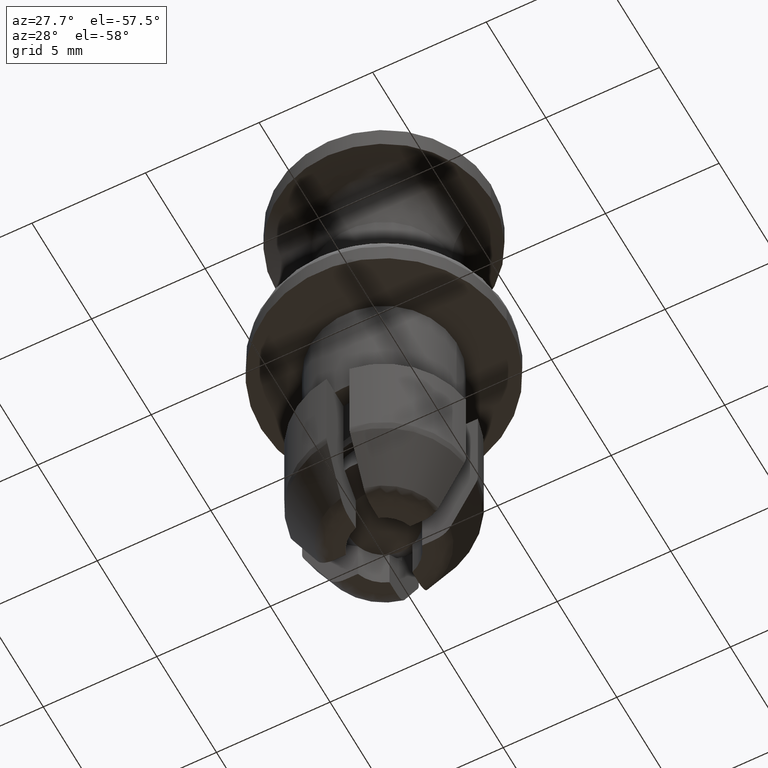
[diagram: clean part render]
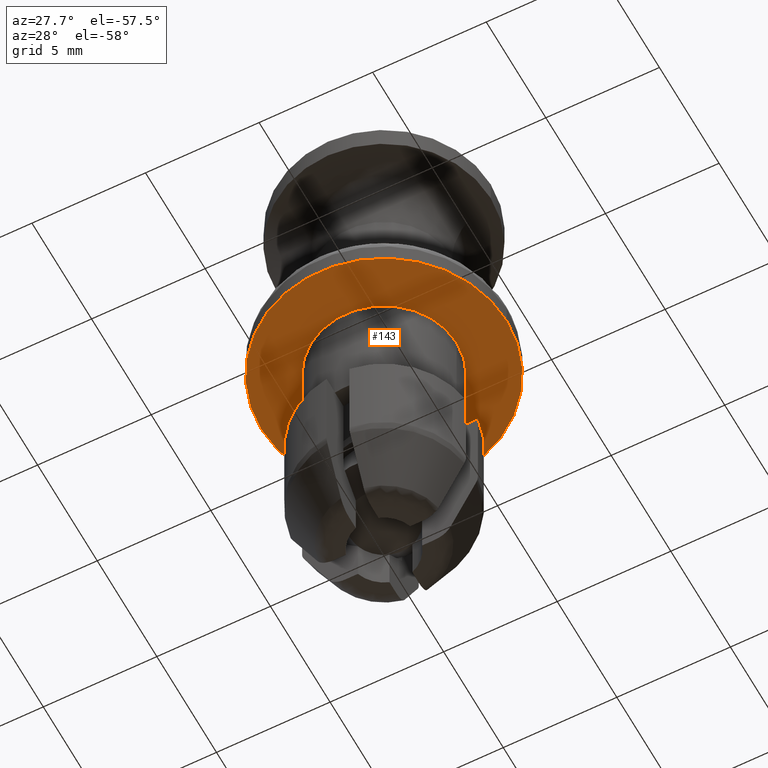
[diagram: same view with one face highlighted and labeled with its STEP entity id]
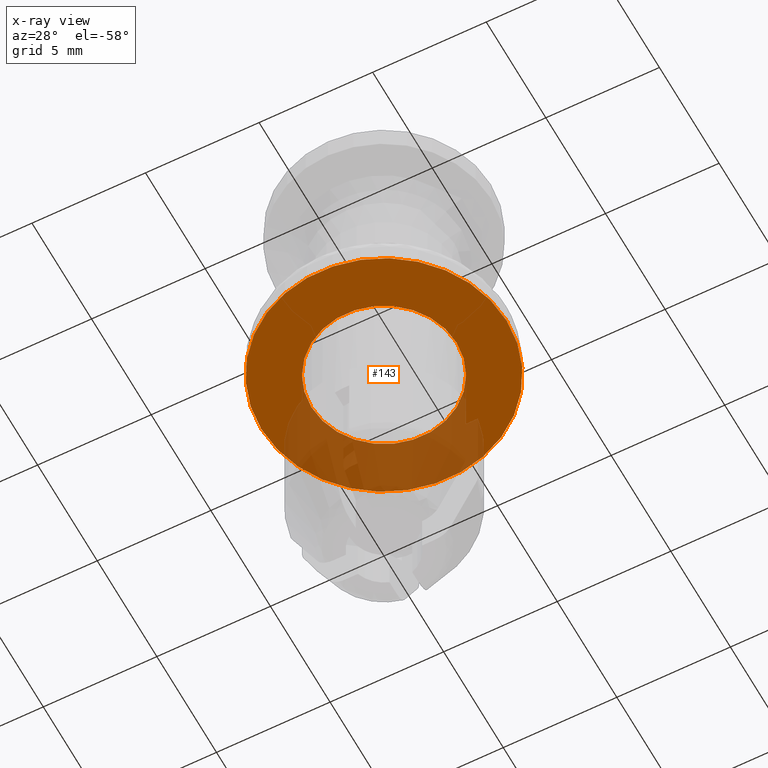
[diagram: x-ray of the same camera — body ghosted, the highlighted face saturated]
A machine part, auxiliary view. The second image highlights one B-rep face of the part: STEP entity #143.
The next image is the same camera in x-ray: the body ghosted, the highlighted face saturated — about 32% of this face is hidden behind the body in this view.
In plain terms, the highlighted planar face has unit normal (0, 0, 1).
Its self-contained STEP definition (entity closure, byte-faithful):
#143=ADVANCED_FACE('',(#504,#505),#503,.F.);
#503=PLANE('',#1234);
#504=FACE_OUTER_BOUND('',#1235,.T.);
#505=FACE_BOUND('',#1236,.T.);
#1231=CARTESIAN_POINT('',(-7.02000000000E+00,-1.12236892330E+01,-2.00000000000E+00));
#1232=DIRECTION('',(0.00000000000E+00,0.00000000000E+00,1.00000000000E+00));
#1233=DIRECTION('',(1.00000000000E+00,0.00000000000E+00,0.00000000000E+00));
#1234=AXIS2_PLACEMENT_3D('',#1231,#1232,#1233);
#1235=EDGE_LOOP('',(#1750,#1751));
#1236=EDGE_LOOP('',(#1752,#1753));
#1750=ORIENTED_EDGE('',*,*,#2104,.T.);
#1751=ORIENTED_EDGE('',*,*,#2105,.T.);
#1752=ORIENTED_EDGE('',*,*,#2106,.T.);
#1753=ORIENTED_EDGE('',*,*,#2107,.T.);
#2104=EDGE_CURVE('',#2864,#2865,#2866,.T.);
#2105=EDGE_CURVE('',#2865,#2864,#2872,.T.);
#2106=EDGE_CURVE('',#2878,#2879,#2880,.T.);
#2107=EDGE_CURVE('',#2879,#2878,#2886,.T.);
#2864=VERTEX_POINT('',#3971);
#2865=VERTEX_POINT('',#3972);
#2866=CIRCLE('',#3976,5.40000000000E+00);
#2872=CIRCLE('',#3980,5.40000000000E+00);
#2878=VERTEX_POINT('',#3981);
#2879=VERTEX_POINT('',#3982);
#2880=CIRCLE('',#3986,3.20000000000E+00);
#2886=CIRCLE('',#3990,3.20000000000E+00);
#3971=CARTESIAN_POINT('',(-5.40000000000E+00,0.00000000000E+00,-2.00000000000E+00));
#3972=CARTESIAN_POINT('',(5.40000000000E+00,2.96059473233E-16,-2.00000000000E+00));
#3973=CARTESIAN_POINT('',(0.00000000000E+00,0.00000000000E+00,-2.00000000000E+00));
#3974=DIRECTION('',(-0.00000000000E+00,0.00000000000E+00,-1.00000000000E+00));
#3975=DIRECTION('',(-1.00000000000E+00,-1.22460635382E-16,0.00000000000E+00));
#3976=AXIS2_PLACEMENT_3D('',#3973,#3974,#3975);
#3977=CARTESIAN_POINT('',(0.00000000000E+00,0.00000000000E+00,-2.00000000000E+00));
#3978=DIRECTION('',(-0.00000000000E+00,0.00000000000E+00,-1.00000000000E+00));
#3979=DIRECTION('',(-1.00000000000E+00,-1.22460635382E-16,0.00000000000E+00));
#3980=AXIS2_PLACEMENT_3D('',#3977,#3978,#3979);
#3981=CARTESIAN_POINT('',(-3.20000000000E+00,0.00000000000E+00,-2.00000000000E+00));
#3982=CARTESIAN_POINT('',(3.20000000000E+00,4.44089209850E-16,-2.00000000000E+00));
#3983=CARTESIAN_POINT('',(-1.97215226305E-31,0.00000000000E+00,-2.00000000000E+00));
#3984=DIRECTION('',(0.00000000000E+00,0.00000000000E+00,1.00000000000E+00));
#3985=DIRECTION('',(-1.00000000000E+00,-1.22460635382E-16,0.00000000000E+00));
#3986=AXIS2_PLACEMENT_3D('',#3983,#3984,#3985);
#3987=CARTESIAN_POINT('',(-1.97215226305E-31,0.00000000000E+00,-2.00000000000E+00));
#3988=DIRECTION('',(0.00000000000E+00,0.00000000000E+00,1.00000000000E+00));
#3989=DIRECTION('',(-1.00000000000E+00,-1.22460635382E-16,0.00000000000E+00));
#3990=AXIS2_PLACEMENT_3D('',#3987,#3988,#3989);